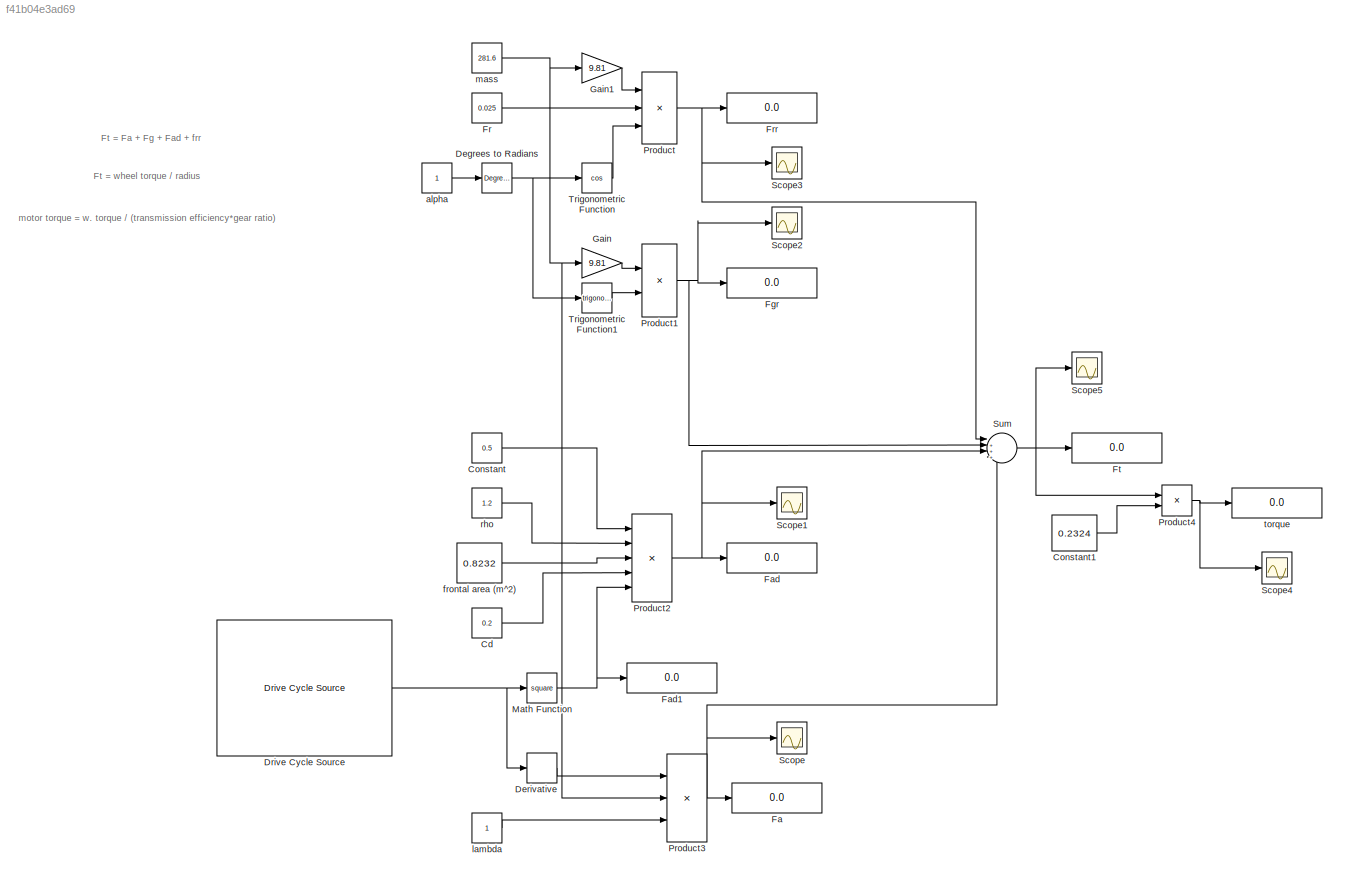
MODEL slx_f41b04e3ad69
KIND model
CONFIG AbsTol = auto
CONFIG EnableMultiTasking = off
CONFIG FixedStep = auto
CONFIG MaxStep = auto
CONFIG MinStep = auto
CONFIG RelTol = 1e-3
CONFIG SampleTimeConstraint = Unconstrained
CONFIG SolverName = VariableStepAuto
CONFIG StartTime = 0
CONFIG StopTime = 2474
BLOCK [Constant] Cd
  Value = 0.2
BLOCK [Constant] Constant
  Value = 0.5
BLOCK [Constant] Constant1
  Value = 0.2324
BLOCK [Reference] Degrees to Radians  REF=simulink_extras/Transformations/Degrees to
Radians
  Ports = [1, 1]
  SourceBlock = simulink_extras/Transformations/Degrees to\nRadians
  SourceProductBaseCode = SL
  SourceType = DegreesToRadians
BLOCK [Derivative] Derivative
BLOCK [Reference] Drive Cycle Source  REF=autolibshared/Drive Cycle Source
  AttributesFormatString = %<cycleVar> (%<tfinal>)
  Ports = [0, 1]
  SourceBlock = autolibshared/Drive Cycle Source
  SourceProductBaseCode = PW,DR,MT,UV,VE
  SourceType = Drive Cycle Source
BLOCK [Display] Fa
  Decimation = 1
  Ports = [1]
BLOCK [Display] Fad
  Decimation = 1
  Ports = [1]
BLOCK [Display] Fad1
  Decimation = 1
  Ports = [1]
BLOCK [Display] Fgr
  Decimation = 1
  Ports = [1]
BLOCK [Constant] Fr
  Value = 0.025
BLOCK [Display] Frr
  Decimation = 1
  Ports = [1]
BLOCK [Display] Ft
  Decimation = 1
  Ports = [1]
BLOCK [Gain] Gain
  Gain = 9.81
BLOCK [Gain] Gain1
  Gain = 9.81
BLOCK [Math] Math Function
  Operator = square
  Ports = [1, 1]
BLOCK [Product] Product
  Inputs = 3
  Ports = [3, 1]
BLOCK [Product] Product1
  Ports = [2, 1]
BLOCK [Product] Product2
  Inputs = 5
  Ports = [5, 1]
BLOCK [Product] Product3
  Inputs = 3
  Ports = [3, 1]
BLOCK [Product] Product4
  Ports = [2, 1]
BLOCK [Scope] Scope
  Floating = off
  NumInputPorts = 1
  Ports = [1]
  ScopeSpecificationString = Simulink.scopes.TimeScopeBlockCfg('CurrentConfiguration', extmgr.ConfigurationSet(extmgr.Configuration('Core','General UI',true),extmgr.Configuration('Core','Source UI',true),extmgr.Configuration('Sources','WiredSimulink',true),extmgr.Configuration('Visuals','Time Domain',true,'SerializedDisplays',{struct('MinYLimReal','-20.99948','MaxYLimReal','20.99948','YLabelReal','','MinYLimMag','0.00000','Ma...<+1404ch>
BLOCK [Scope] Scope1
  Floating = off
  NumInputPorts = 1
  Ports = [1]
  ScopeSpecificationString = Simulink.scopes.TimeScopeBlockCfg('CurrentConfiguration', extmgr.ConfigurationSet(extmgr.Configuration('Core','General UI',true),extmgr.Configuration('Core','Source UI',true),extmgr.Configuration('Sources','WiredSimulink',true,'DataLoggingVariableName','ScopeData1'),extmgr.Configuration('Visuals','Time Domain',true,'SerializedDisplays',{struct('MinYLimReal','-7.93333','MaxYLimReal','71.39997','YLa...<+1371ch>
BLOCK [Scope] Scope2
  Floating = off
  NumInputPorts = 1
  Ports = [1]
  ScopeSpecificationString = Simulink.scopes.TimeScopeBlockCfg('CurrentConfiguration', extmgr.ConfigurationSet(extmgr.Configuration('Core','General UI',true),extmgr.Configuration('Core','Source UI',true),extmgr.Configuration('Sources','WiredSimulink',true,'DataLoggingVariableName','ScopeData2'),extmgr.Configuration('Visuals','Time Domain',true,'SerializedDisplays',{struct('MinYLimReal','33.79483','MaxYLimReal','42.68372','YLa...<+1452ch>
BLOCK [Scope] Scope3
  Floating = off
  NumInputPorts = 1
  Ports = [1]
  ScopeSpecificationString = Simulink.scopes.TimeScopeBlockCfg('CurrentConfiguration', extmgr.ConfigurationSet(extmgr.Configuration('Core','General UI',true),extmgr.Configuration('Core','Source UI',true),extmgr.Configuration('Sources','WiredSimulink',true,'DataLoggingVariableName','ScopeData3'),extmgr.Configuration('Visuals','Time Domain',true),extmgr.Configuration('Tools','Plot Navigation',true),extmgr.Configuration('Tools',...<+40ch>
BLOCK [Scope] Scope4
  Floating = off
  NumInputPorts = 1
  Ports = [1]
  ScopeSpecificationString = Simulink.scopes.TimeScopeBlockCfg('CurrentConfiguration', extmgr.ConfigurationSet(extmgr.Configuration('Core','General UI',true),extmgr.Configuration('Core','Source UI',true),extmgr.Configuration('Sources','WiredSimulink',true,'DataLoggingVariableName','ScopeData4'),extmgr.Configuration('Visuals','Time Domain',true,'SerializedDisplays',{struct('MinYLimReal','3.20605','MaxYLimReal','26.90207','YLab...<+1369ch>
BLOCK [Scope] Scope5
  Floating = off
  NumInputPorts = 1
  Ports = [1]
  ScopeSpecificationString = Simulink.scopes.TimeScopeBlockCfg('CurrentConfiguration', extmgr.ConfigurationSet(extmgr.Configuration('Core','General UI',true),extmgr.Configuration('Core','Source UI',true),extmgr.Configuration('Sources','WiredSimulink',true,'DataLoggingVariableName','ScopeData5'),extmgr.Configuration('Visuals','Time Domain',true,'SerializedDisplays',{struct('MinYLimReal','3.73726','MaxYLimReal','5.73726','YLabe...<+1360ch>
BLOCK [Sum] Sum
  Inputs = |++++
  Ports = [4, 1]
BLOCK [Trigonometry] Trigonometric Function
  Operator = cos
  Ports = [1, 1]
BLOCK [Trigonometry] Trigonometric Function1
  Ports = [1, 1]
BLOCK [Constant] alpha
BLOCK [Constant] frontal area (m^2)
  Value = 0.8232
BLOCK [Constant] lambda
BLOCK [Constant] mass
  Value = 281.6
BLOCK [Constant] rho
  Value = 1.2
BLOCK [Display] torque
  Decimation = 1
  Ports = [1]
ANNOTATION (root): Ft = Fa + Fg + Fad + frr
ANNOTATION (root): Ft = wheel torque / radius
ANNOTATION (root): motor torque = w. torque / (transmission efficiency*gear ratio)
LINE Cd:1 -> Product2:4
LINE Constant1:1 -> Product4:2
LINE Constant:1 -> Product2:1
NET Degrees to Radians:1 -> Trigonometric Function1:1, Trigonometric Function:1
LINE Derivative:1 -> Product3:1
NET Drive Cycle Source:1 -> Derivative:1, Math Function:1
LINE Fr:1 -> Product:2
LINE Gain1:1 -> Product:1
LINE Gain:1 -> Product1:1
NET Math Function:1 -> Fad1:1, Product2:5
NET Product1:1 -> Fgr:1, Scope2:1, Sum:2
NET Product2:1 -> Fad:1, Scope1:1, Sum:3
NET Product3:1 -> Fa:1, Scope:1, Sum:4
NET Product4:1 -> Scope4:1, torque:1
NET Product:1 -> Frr:1, Scope3:1, Sum:1
NET Sum:1 -> Ft:1, Product4:1, Scope5:1
LINE Trigonometric Function1:1 -> Product1:2
LINE Trigonometric Function:1 -> Product:3
LINE alpha:1 -> Degrees to Radians:1
LINE frontal area (m^2):1 -> Product2:3
LINE lambda:1 -> Product3:3
NET mass:1 -> Gain1:1, Gain:1, Product3:2
LINE rho:1 -> Product2:2
note: NET lines group one-source signal fan-out (src -> all destinations, sorted); 1:1 wires keep LINE
